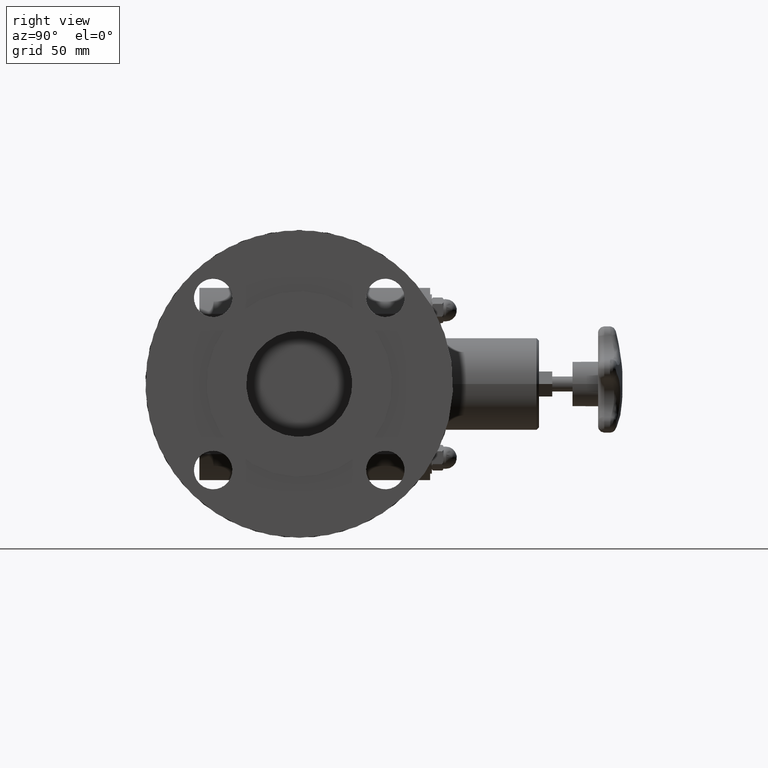
[diagram: clean part render]
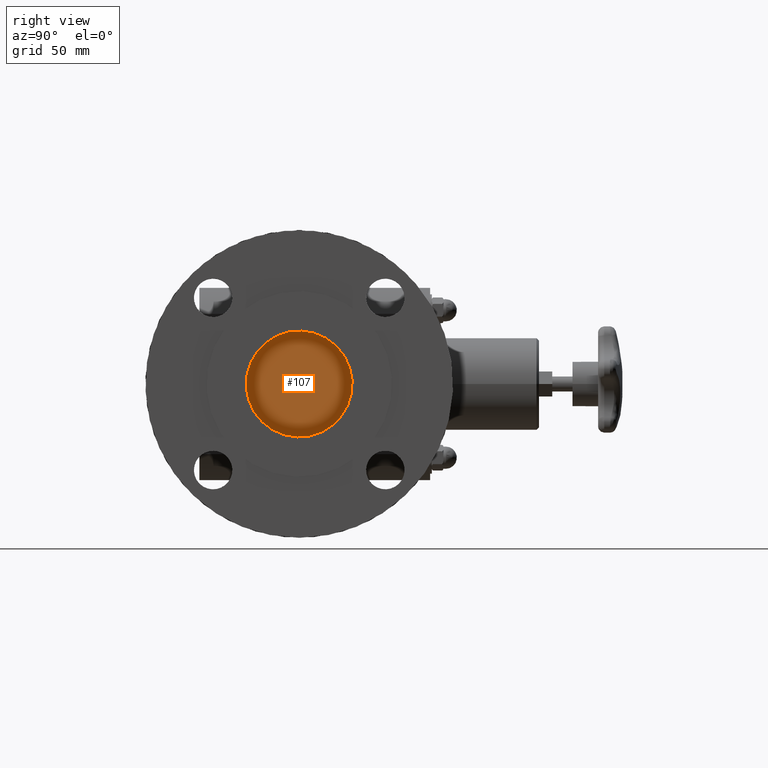
[diagram: same view with one face highlighted and labeled with its STEP entity id]
A machine part, right view. The second image highlights one B-rep face of the part: STEP entity #107.
In plain terms, the highlighted planar face has unit normal (1, 0, 0).
Its self-contained STEP definition (entity closure, byte-faithful):
#91=CARTESIAN_POINT('',(1.997500000000001,1.948000000000035,6.955411E-016));
#92=DIRECTION('',(1.0,0.0,0.0));
#93=DIRECTION('',(0.0,0.0,-1.0));
#94=AXIS2_PLACEMENT_3D('',#91,#92,#93);
#95=PLANE('',#94);
#96=CARTESIAN_POINT('',(1.997500000000001,1.657028894562829,-0.991694542592716));
#97=VERTEX_POINT('',#96);
#98=CARTESIAN_POINT('',(1.997500000000001,1.948000000000035,6.955411E-016));
#99=DIRECTION('',(1.000000000000000,-3.734826E-016,3.734826E-016));
#100=DIRECTION('',(-5.281841E-016,-0.707106781186553,0.707106781186542));
#101=AXIS2_PLACEMENT_3D('',#98,#99,#100);
#102=CIRCLE('',#101,1.033500000000000);
#103=EDGE_CURVE('',#97,#97,#102,.T.);
#104=ORIENTED_EDGE('',*,*,#103,.T.);
#105=EDGE_LOOP('',(#104));
#106=FACE_OUTER_BOUND('',#105,.T.);
#107=ADVANCED_FACE('',(#106),#95,.T.);